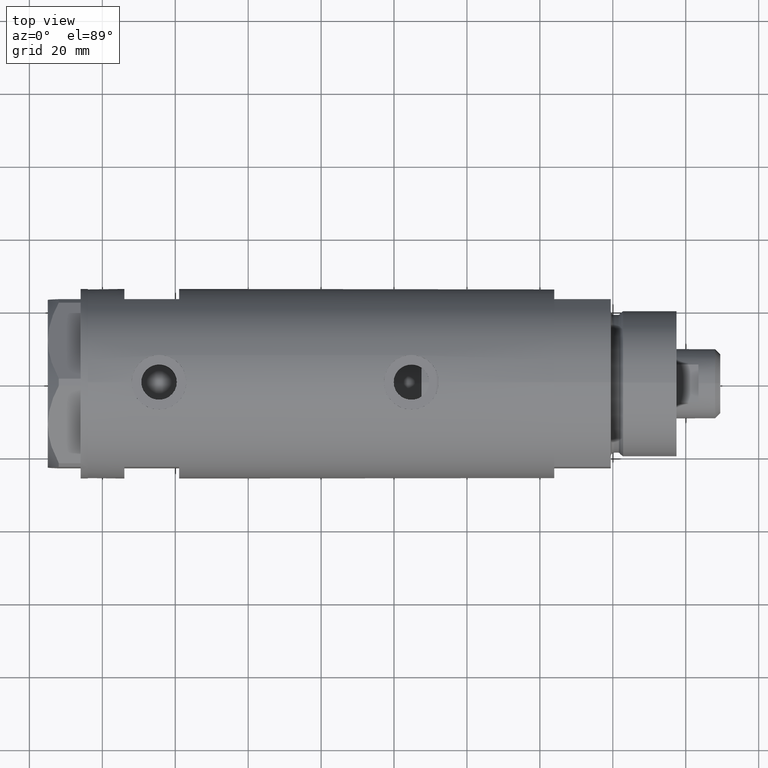
[diagram: clean part render]
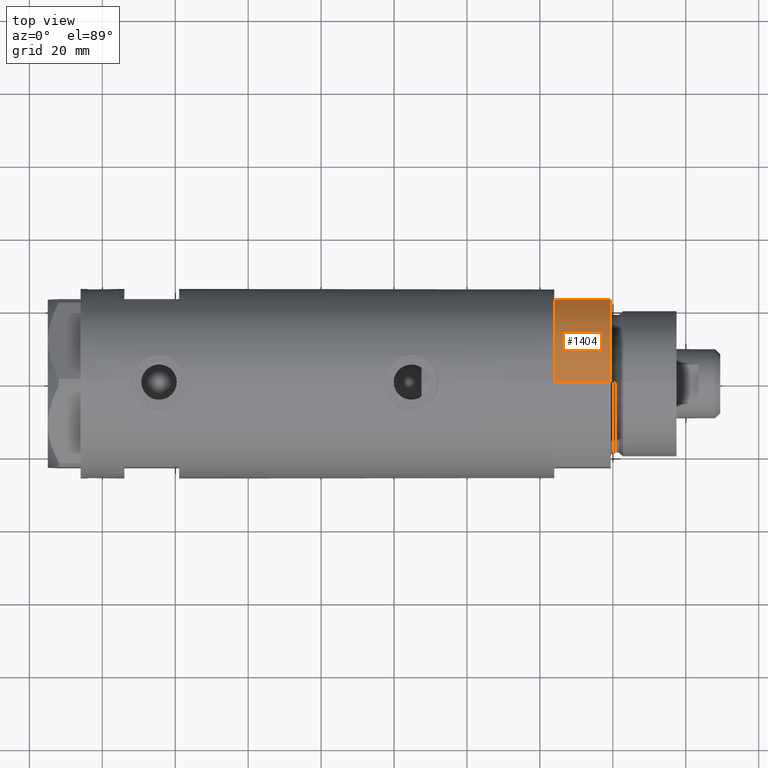
[diagram: same view with one face highlighted and labeled with its STEP entity id]
A machine part, top view. The second image highlights one B-rep face of the part: STEP entity #1404.
In plain terms, the highlighted cylindrical surface (partial cylindrical patch) has radius 26 mm, axis along (-1, -0, 0).
Its self-contained STEP definition (entity closure, byte-faithful):
#9 = DIRECTION ( 'NONE',  ( 0.000000000000000000, 0.000000000000000000, 1.000000000000000000 ) ) ;
#36 = DIRECTION ( 'NONE',  ( -0.000000000000000000, -0.000000000000000000, 1.000000000000000000 ) ) ;
#98 = EDGE_CURVE ( 'NONE', #4192, #2034, #675, .T. ) ;
#150 = ORIENTED_EDGE ( 'NONE', *, *, #4398, .F. ) ;
#393 = VERTEX_POINT ( 'NONE', #778 ) ;
#644 = ORIENTED_EDGE ( 'NONE', *, *, #3160, .F. ) ;
#675 = CIRCLE ( 'NONE', #1455, 26.00000000000000355 ) ;
#778 = CARTESIAN_POINT ( 'NONE',  ( -26.00000000000000355, 0.000000000000000000, 15.50000000000000000 ) ) ;
#788 = DIRECTION ( 'NONE',  ( 0.000000000000000000, 0.000000000000000000, 1.000000000000000000 ) ) ;
#812 = CARTESIAN_POINT ( 'NONE',  ( -26.00000000000000355, 0.000000000000000000, 15.50000000000000000 ) ) ;
#816 = ORIENTED_EDGE ( 'NONE', *, *, #98, .T. ) ;
#915 = CARTESIAN_POINT ( 'NONE',  ( -12.12435565298214613, 23.00000000000000355, 15.50000000000000000 ) ) ;
#1211 = VECTOR ( 'NONE', #2330, 1000.000000000000000 ) ;
#1404 = ADVANCED_FACE ( 'NONE', ( #3261 ), #3958, .T. ) ;
#1455 = AXIS2_PLACEMENT_3D ( 'NONE', #1517, #9, #3398 ) ;
#1517 = CARTESIAN_POINT ( 'NONE',  ( 0.000000000000000000, 0.000000000000000000, 0.000000000000000000 ) ) ;
#1834 = VERTEX_POINT ( 'NONE', #915 ) ;
#2034 = VERTEX_POINT ( 'NONE', #2099 ) ;
#2094 = CARTESIAN_POINT ( 'NONE',  ( -12.12435565298215145, 23.00000000000000355, 0.000000000000000000 ) ) ;
#2099 = CARTESIAN_POINT ( 'NONE',  ( -26.00000000000000355, 0.000000000000000000, 0.000000000000000000 ) ) ;
#2330 = DIRECTION ( 'NONE',  ( -0.000000000000000000, -0.000000000000000000, -1.000000000000000000 ) ) ;
#2400 = CIRCLE ( 'NONE', #2956, 26.00000000000000355 ) ;
#2671 = CARTESIAN_POINT ( 'NONE',  ( 0.000000000000000000, 0.000000000000000000, 15.50000000000000000 ) ) ;
#2688 = LINE ( 'NONE', #3803, #4727 ) ;
#2872 = CARTESIAN_POINT ( 'NONE',  ( 0.000000000000000000, 0.000000000000000000, 15.50000000000000000 ) ) ;
#2956 = AXIS2_PLACEMENT_3D ( 'NONE', #2671, #788, #3454 ) ;
#3160 = EDGE_CURVE ( 'NONE', #4192, #1834, #2688, .T. ) ;
#3261 = FACE_OUTER_BOUND ( 'NONE', #3445, .T. ) ;
#3398 = DIRECTION ( 'NONE',  ( 1.000000000000000000, 0.000000000000000000, 0.000000000000000000 ) ) ;
#3445 = EDGE_LOOP ( 'NONE', ( #150, #4507, #644, #816 ) ) ;
#3454 = DIRECTION ( 'NONE',  ( 1.000000000000000000, 0.000000000000000000, 0.000000000000000000 ) ) ;
#3803 = CARTESIAN_POINT ( 'NONE',  ( -12.12435565298215145, 23.00000000000000355, 0.000000000000000000 ) ) ;
#3810 = LINE ( 'NONE', #812, #1211 ) ;
#3958 = CYLINDRICAL_SURFACE ( 'NONE', #4842, 26.00000000000000355 ) ;
#4192 = VERTEX_POINT ( 'NONE', #2094 ) ;
#4326 = DIRECTION ( 'NONE',  ( -0.000000000000000000, -0.000000000000000000, -1.000000000000000000 ) ) ;
#4398 = EDGE_CURVE ( 'NONE', #393, #2034, #3810, .T. ) ;
#4507 = ORIENTED_EDGE ( 'NONE', *, *, #4539, .F. ) ;
#4539 = EDGE_CURVE ( 'NONE', #1834, #393, #2400, .T. ) ;
#4727 = VECTOR ( 'NONE', #36, 1000.000000000000000 ) ;
#4748 = DIRECTION ( 'NONE',  ( -1.000000000000000000, 0.000000000000000000, 0.000000000000000000 ) ) ;
#4842 = AXIS2_PLACEMENT_3D ( 'NONE', #2872, #4326, #4748 ) ;